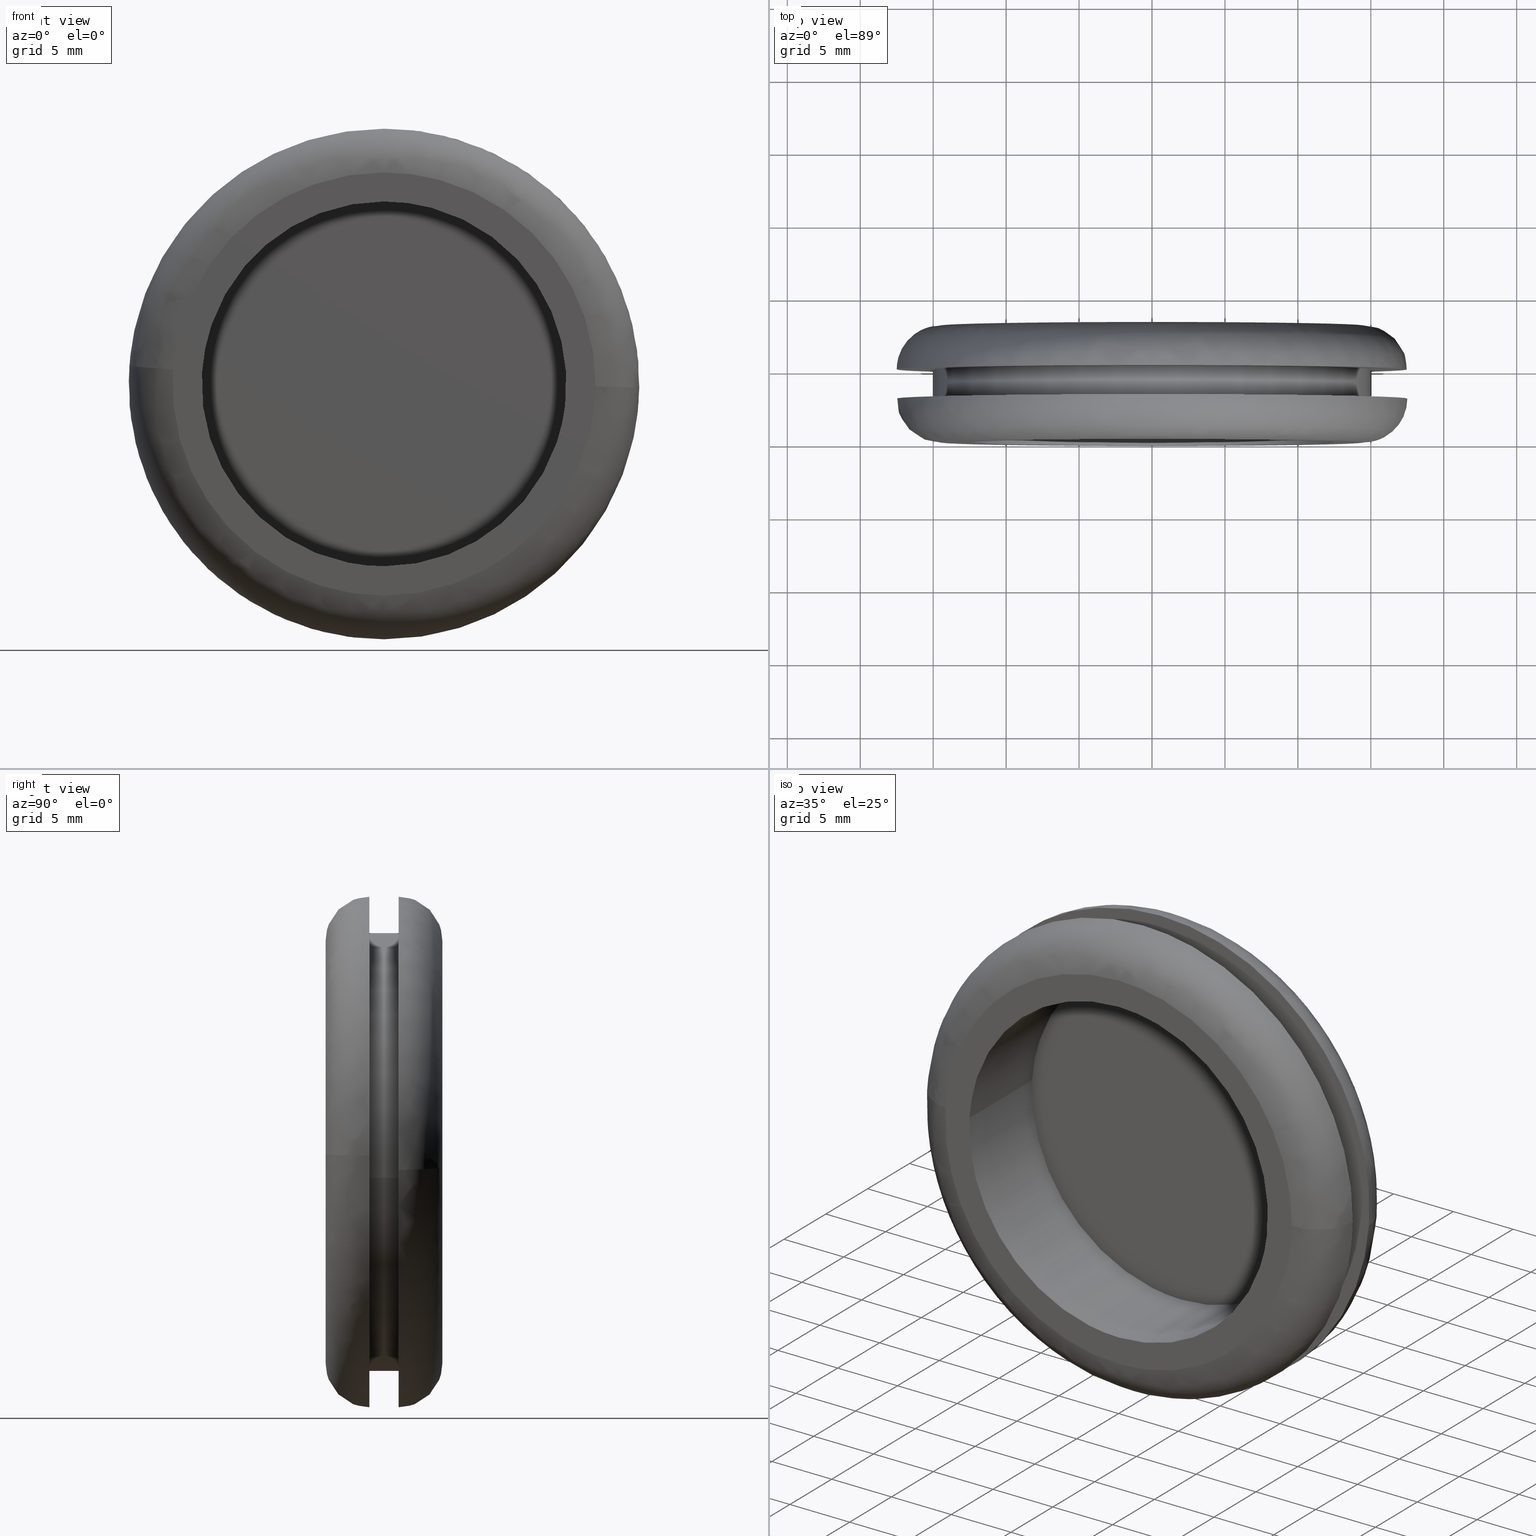
[diagram: canonical four-view strip — front | top / right | iso, engineering-drawing reading convention]
A machine part, canonical four-view strip (front | top / right | iso — engineering-drawing reading convention). The complete STEP part file that produces these views, byte-faithful:
ISO-10303-21;
HEADER;
/****************************************************************
 * Generated by software with PDE/Lib inside                    *
 * PDElib Version 4.4.1-0003, patched  Thursday August 19 11:58 *
 * International Technegroup Inc. (www.iti-oh.com)              *
 ****************************************************************/
FILE_DESCRIPTION((''),'2;1');
FILE_NAME('','2005-12-14T14:17:29',(''),(''),'','CADfix','');
FILE_SCHEMA(('AUTOMOTIVE_DESIGN'));
ENDSEC;
DATA;
#5=APPLICATION_CONTEXT('automotive design');
#6=APPLICATION_PROTOCOL_DEFINITION('Draft International Standard','automotive_design',1998,#5);
#7=PRODUCT_CONTEXT('None',#5,'mechanical');
#8=PRODUCT('grommet','','None',(#7));
#9=PRODUCT_RELATED_PRODUCT_CATEGORY('part','description',(#8));
#10=PRODUCT_DEFINITION_FORMATION('None','None',#8);
#11=PRODUCT_DEFINITION_CONTEXT('part definition',#5,'design');
#12=PRODUCT_DEFINITION('None','None',#10,#11);
#18=(NAMED_UNIT(*)PLANE_ANGLE_UNIT()SI_UNIT($,.RADIAN.));
#19=DIMENSIONAL_EXPONENTS(0.0,0.0,0.0,0.0,0.0,0.0,0.0);
#20=PLANE_ANGLE_MEASURE_WITH_UNIT(PLANE_ANGLE_MEASURE(0.017453292500000),#18);
#24=(CONVERSION_BASED_UNIT('DEGREE',#20)NAMED_UNIT(#19)PLANE_ANGLE_UNIT());
#28=(NAMED_UNIT(*)SI_UNIT($,.STERADIAN.)SOLID_ANGLE_UNIT());
#32=(LENGTH_UNIT()NAMED_UNIT(*)SI_UNIT(.MILLI.,.METRE.));
#34=UNCERTAINTY_MEASURE_WITH_UNIT(LENGTH_MEASURE(0.001000000000000),#32,'DISTANCE_ACCURACY_VALUE','');
#36=(GEOMETRIC_REPRESENTATION_CONTEXT(3)GLOBAL_UNCERTAINTY_ASSIGNED_CONTEXT((#34))GLOBAL_UNIT_ASSIGNED_CONTEXT((#24,#28,#32))REPRESENTATION_CONTEXT('None','None'));
#37=AXIS2_PLACEMENT_3D('',#38,#39,#40);
#38=CARTESIAN_POINT('',(0.0,0.0,0.0));
#39=DIRECTION('',(0.0,0.0,1.0));
#40=DIRECTION('',(1.0,0.0,0.0));
#41=ADVANCED_BREP_SHAPE_REPRESENTATION('',(#37,#923),#36);
#42=PRODUCT_DEFINITION_SHAPE('','',#12);
#43=SHAPE_DEFINITION_REPRESENTATION(#42,#41);
#44=CARTESIAN_POINT('',(14.895142895454988,5.050000000000002,-1.770513519851377));
#45=CARTESIAN_POINT('',(14.945814231729083,5.050000000000001,-1.344220929569665));
#46=CARTESIAN_POINT('',(14.972021976328000,5.050000000000001,-0.915728093022855));
#47=CARTESIAN_POINT('',(15.887750069350853,5.050000000000001,14.056293883305147));
#48=CARTESIAN_POINT('',(0.915728093022855,5.050000000000001,14.972021976328000));
#49=CARTESIAN_POINT('',(-14.056293883305147,5.050000000000001,15.887750069350853));
#50=CARTESIAN_POINT('',(-14.972021976328000,5.050000000000001,0.915728093022854));
#51=CARTESIAN_POINT('',(14.895142895454988,2.948750000000000,-1.770513519851377));
#52=CARTESIAN_POINT('',(14.945814231729083,2.948750000000000,-1.344220929569665));
#53=CARTESIAN_POINT('',(14.972021976328000,2.948750000000000,-0.915728093022855));
#54=CARTESIAN_POINT('',(15.887750069350853,2.948750000000000,14.056293883305147));
#55=CARTESIAN_POINT('',(0.915728093022855,2.948750000000000,14.972021976328000));
#56=CARTESIAN_POINT('',(-14.056293883305147,2.948750000000000,15.887750069350853));
#57=CARTESIAN_POINT('',(-14.972021976328000,2.948750000000000,0.915728093022854));
#65=(BOUNDED_SURFACE()B_SPLINE_SURFACE(2,1,((#44,#51),(#45,#52),(#46,#53),(#47,#54),(#48,#55),(#49,#56),(#50,#57)),.UNSPECIFIED.,.F.,.F.,.U.)B_SPLINE_SURFACE_WITH_KNOTS((3,2,2,3),(2,2),(0.0,0.994112549695429,25.846926292081129,50.699740034466821),(0.0,2.101250000000002),.UNSPECIFIED.)GEOMETRIC_REPRESENTATION_ITEM()RATIONAL_B_SPLINE_SURFACE(((0.977505800795127,0.977505800795127),(0.988284271247462,0.988284271247462),(1.0,1.0),(0.707106781186548,0.707106781186548),(1.0,1.0),(0.707106781186548,0.707106781186548),(1.0,1.0)))REPRESENTATION_ITEM('')SURFACE());
#66=CARTESIAN_POINT('',(14.895143964700610,5.000000000000178,-1.770504524354806));
#67=VERTEX_POINT('',#66);
#68=CARTESIAN_POINT('',(0.0,5.0,15.0));
#69=VERTEX_POINT('',#68);
#70=CARTESIAN_POINT('',(14.895143964700610,5.000000000000178,-1.770504524354806));
#71=CARTESIAN_POINT('',(14.999999999999996,5.0,-0.888357249481153));
#72=CARTESIAN_POINT('',(15.0,5.0,-3.061516E-016));
#73=CARTESIAN_POINT('',(14.999999999999996,4.999999999999999,14.999999999999996));
#74=CARTESIAN_POINT('',(0.0,5.0,15.0));
#82=(BOUNDED_CURVE()B_SPLINE_CURVE(2,(#70,#71,#72,#73,#74),.UNSPECIFIED.,.F.,.U.)B_SPLINE_CURVE_WITH_KNOTS((3,2,3),(0.229562575580339,0.250000000000000,0.500000000000000),.UNSPECIFIED.)CURVE()GEOMETRIC_REPRESENTATION_ITEM()RATIONAL_B_SPLINE_CURVE((0.956026954238961,0.976056067909875,1.0,0.707106781186547,1.0))REPRESENTATION_ITEM(''));
#83=EDGE_CURVE('',#67,#69,#82,.T.);
#84=ORIENTED_EDGE('',*,*,#83,.T.);
#85=CARTESIAN_POINT('',(-14.972022653572500,4.999999999999825,0.915717020038759));
#86=VERTEX_POINT('',#85);
#87=CARTESIAN_POINT('',(0.0,5.0,15.0));
#88=CARTESIAN_POINT('',(-14.110601458978342,5.000000000000002,15.000000000000004));
#89=CARTESIAN_POINT('',(-14.972022653572502,4.999999999999825,0.915717020038759));
#97=(BOUNDED_CURVE()B_SPLINE_CURVE(2,(#87,#88,#89),.UNSPECIFIED.,.F.,.U.)B_SPLINE_CURVE_WITH_KNOTS((3,3),(0.500000000000000,0.739333089853860),.UNSPECIFIED.)CURVE()GEOMETRIC_REPRESENTATION_ITEM()RATIONAL_B_SPLINE_CURVE((1.0,0.719603843776535,0.976072315169929))REPRESENTATION_ITEM(''));
#98=EDGE_CURVE('',#69,#86,#97,.T.);
#99=ORIENTED_EDGE('',*,*,#98,.T.);
#100=CARTESIAN_POINT('',(-14.972022645416461,3.0,0.915717153392057));
#101=VERTEX_POINT('',#100);
#102=CARTESIAN_POINT('',(-14.972022653572500,4.999999999999825,0.915717020038759));
#103=CARTESIAN_POINT('',(-14.972022645416461,3.0,0.915717153392057));
#104=QUASI_UNIFORM_CURVE('',1,(#102,#103),.UNSPECIFIED.,.F.,.U.);
#105=EDGE_CURVE('',#86,#101,#104,.T.);
#106=ORIENTED_EDGE('',*,*,#105,.T.);
#107=CARTESIAN_POINT('',(0.0,3.0,15.0));
#108=VERTEX_POINT('',#107);
#109=CARTESIAN_POINT('',(0.0,3.0,15.0));
#110=CARTESIAN_POINT('',(-14.110601333062750,3.000000000000000,15.000000000000002));
#111=CARTESIAN_POINT('',(-14.972022645416464,3.0,0.915717153392057));
#119=(BOUNDED_CURVE()B_SPLINE_CURVE(2,(#109,#110,#111),.UNSPECIFIED.,.F.,.U.)B_SPLINE_CURVE_WITH_KNOTS((3,3),(0.500000000000000,0.739333088317014),.UNSPECIFIED.)CURVE()GEOMETRIC_REPRESENTATION_ITEM()RATIONAL_B_SPLINE_CURVE((1.0,0.719603845577062,0.976072311876173))REPRESENTATION_ITEM(''));
#120=EDGE_CURVE('',#108,#101,#119,.T.);
#121=ORIENTED_EDGE('',*,*,#120,.F.);
#122=CARTESIAN_POINT('',(14.895143951811241,3.0,-1.770504632792812));
#123=VERTEX_POINT('',#122);
#124=CARTESIAN_POINT('',(14.895143951811241,3.000000000000000,-1.770504632792813));
#125=CARTESIAN_POINT('',(15.0,3.0,-0.888357304273344));
#126=CARTESIAN_POINT('',(15.0,3.0,-3.061516E-016));
#127=CARTESIAN_POINT('',(14.999999999999996,3.000000000000000,14.999999999999996));
#128=CARTESIAN_POINT('',(0.0,3.0,15.0));
#136=(BOUNDED_CURVE()B_SPLINE_CURVE(2,(#124,#125,#126,#127,#128),.UNSPECIFIED.,.F.,.U.)B_SPLINE_CURVE_WITH_KNOTS((3,2,3),(0.229562574349979,0.250000000000000,0.500000000000000),.UNSPECIFIED.)CURVE()GEOMETRIC_REPRESENTATION_ITEM()RATIONAL_B_SPLINE_CURVE((0.956026951827404,0.976056066468419,1.0,0.707106781186547,1.0))REPRESENTATION_ITEM(''));
#137=EDGE_CURVE('',#123,#108,#136,.T.);
#138=ORIENTED_EDGE('',*,*,#137,.F.);
#139=CARTESIAN_POINT('',(14.895143964700610,5.000000000000178,-1.770504524354806));
#140=CARTESIAN_POINT('',(14.895143951811241,3.0,-1.770504632792812));
#141=QUASI_UNIFORM_CURVE('',1,(#139,#140),.UNSPECIFIED.,.F.,.U.);
#142=EDGE_CURVE('',#67,#123,#141,.T.);
#143=ORIENTED_EDGE('',*,*,#142,.F.);
#144=EDGE_LOOP('',(#84,#99,#106,#121,#138,#143));
#145=FACE_OUTER_BOUND('',#144,.T.);
#146=ADVANCED_FACE('',(#145),#65,.T.);
#147=CARTESIAN_POINT('',(-14.972021976328000,5.050000000000001,0.915728093022854));
#148=CARTESIAN_POINT('',(-15.887750069350853,5.050000000000001,-14.056293883305147));
#149=CARTESIAN_POINT('',(-0.915728093022855,5.050000000000001,-14.972021976328000));
#150=CARTESIAN_POINT('',(13.223152362592515,5.050000000000001,-15.836792950987912));
#151=CARTESIAN_POINT('',(14.895142895454988,5.050000000000002,-1.770513519851377));
#152=CARTESIAN_POINT('',(-14.972021976328000,2.948750000000000,0.915728093022854));
#153=CARTESIAN_POINT('',(-15.887750069350853,2.948750000000000,-14.056293883305147));
#154=CARTESIAN_POINT('',(-0.915728093022855,2.948750000000000,-14.972021976328000));
#155=CARTESIAN_POINT('',(13.223152362592515,2.948750000000000,-15.836792950987912));
#156=CARTESIAN_POINT('',(14.895142895454988,2.948750000000000,-1.770513519851377));
#164=(BOUNDED_SURFACE()B_SPLINE_SURFACE(2,1,((#147,#152),(#148,#153),(#149,#154),(#150,#155),(#151,#156)),.UNSPECIFIED.,.F.,.F.,.U.)B_SPLINE_SURFACE_WITH_KNOTS((3,2,3),(2,2),(0.0,24.852813742385699,48.711514935075961),(0.0,2.101250000000002),.UNSPECIFIED.)GEOMETRIC_REPRESENTATION_ITEM()RATIONAL_B_SPLINE_SURFACE(((1.0,1.0),(0.707106781186548,0.707106781186548),(1.0,1.0),(0.718822509939086,0.718822509939086),(0.977505800795127,0.977505800795127)))REPRESENTATION_ITEM('')SURFACE());
#165=CARTESIAN_POINT('',(0.0,5.0,-15.0));
#166=VERTEX_POINT('',#165);
#167=CARTESIAN_POINT('',(0.0,5.0,-15.0));
#168=CARTESIAN_POINT('',(13.322625991727062,5.0,-15.000000000000002));
#169=CARTESIAN_POINT('',(14.895143964700610,5.000000000000178,-1.770504524354806));
#177=(BOUNDED_CURVE()B_SPLINE_CURVE(2,(#167,#168,#169),.UNSPECIFIED.,.F.,.U.)B_SPLINE_CURVE_WITH_KNOTS((3,3),(0.0,0.229562575580339),.UNSPECIFIED.)CURVE()GEOMETRIC_REPRESENTATION_ITEM()RATIONAL_B_SPLINE_CURVE((1.0,0.731050713276673,0.956026954238961))REPRESENTATION_ITEM(''));
#178=EDGE_CURVE('',#166,#67,#177,.T.);
#179=ORIENTED_EDGE('',*,*,#178,.T.);
#180=ORIENTED_EDGE('',*,*,#142,.T.);
#181=CARTESIAN_POINT('',(0.0,3.0,-15.0));
#182=VERTEX_POINT('',#181);
#183=CARTESIAN_POINT('',(0.0,3.0,-15.0));
#184=CARTESIAN_POINT('',(13.322625894054363,3.000000000000000,-14.999999999999998));
#185=CARTESIAN_POINT('',(14.895143951811241,3.000000000000000,-1.770504632792813));
#193=(BOUNDED_CURVE()B_SPLINE_CURVE(2,(#183,#184,#185),.UNSPECIFIED.,.F.,.U.)B_SPLINE_CURVE_WITH_KNOTS((3,3),(0.0,0.229562574349979),.UNSPECIFIED.)CURVE()GEOMETRIC_REPRESENTATION_ITEM()RATIONAL_B_SPLINE_CURVE((1.0,0.731050714718128,0.956026951827404))REPRESENTATION_ITEM(''));
#194=EDGE_CURVE('',#182,#123,#193,.T.);
#195=ORIENTED_EDGE('',*,*,#194,.F.);
#196=CARTESIAN_POINT('',(-14.972022645416464,3.0,0.915717153392057));
#197=CARTESIAN_POINT('',(-14.999999999999996,3.000000000000000,0.458285964326909));
#198=CARTESIAN_POINT('',(-15.0,3.0,-3.061516E-016));
#199=CARTESIAN_POINT('',(-14.999999999999996,3.000000000000000,-14.999999999999996));
#200=CARTESIAN_POINT('',(0.0,3.0,-15.0));
#208=(BOUNDED_CURVE()B_SPLINE_CURVE(2,(#196,#197,#198,#199,#200),.UNSPECIFIED.,.F.,.U.)B_SPLINE_CURVE_WITH_KNOTS((3,2,3),(0.739333088317014,0.750000000000000,1.0),.UNSPECIFIED.)CURVE()GEOMETRIC_REPRESENTATION_ITEM()RATIONAL_B_SPLINE_CURVE((0.976072311876173,0.987502935609486,1.0,0.707106781186547,1.0))REPRESENTATION_ITEM(''));
#209=EDGE_CURVE('',#101,#182,#208,.T.);
#210=ORIENTED_EDGE('',*,*,#209,.F.);
#211=ORIENTED_EDGE('',*,*,#105,.F.);
#212=CARTESIAN_POINT('',(-14.972022653572502,4.999999999999825,0.915717020038759));
#213=CARTESIAN_POINT('',(-14.999999999999996,5.000000000000001,0.458285897463316));
#214=CARTESIAN_POINT('',(-15.0,5.0,-3.061516E-016));
#215=CARTESIAN_POINT('',(-14.999999999999996,4.999999999999999,-14.999999999999996));
#216=CARTESIAN_POINT('',(0.0,5.0,-15.0));
#224=(BOUNDED_CURVE()B_SPLINE_CURVE(2,(#212,#213,#214,#215,#216),.UNSPECIFIED.,.F.,.U.)B_SPLINE_CURVE_WITH_KNOTS((3,2,3),(0.739333089853860,0.750000000000000,1.0),.UNSPECIFIED.)CURVE()GEOMETRIC_REPRESENTATION_ITEM()RATIONAL_B_SPLINE_CURVE((0.976072315169929,0.987502937410012,1.0,0.707106781186547,1.0))REPRESENTATION_ITEM(''));
#225=EDGE_CURVE('',#86,#166,#224,.T.);
#226=ORIENTED_EDGE('',*,*,#225,.T.);
#227=EDGE_LOOP('',(#179,#180,#195,#210,#211,#226));
#228=FACE_OUTER_BOUND('',#227,.T.);
#229=ADVANCED_FACE('',(#228),#164,.T.);
#230=CARTESIAN_POINT('',(12.412619079545834,7.687499999999898,-1.475427933209482));
#231=CARTESIAN_POINT('',(12.454845193107571,7.687499999999897,-1.120184107974722));
#232=CARTESIAN_POINT('',(12.476684980273340,7.687499999999898,-0.763106744185713));
#233=CARTESIAN_POINT('',(13.239791724459048,7.687499999999900,11.713578236087622));
#234=CARTESIAN_POINT('',(0.763106744185712,7.687499999999898,12.476684980273340));
#235=CARTESIAN_POINT('',(-11.713578236087622,7.687499999999900,13.239791724459048));
#236=CARTESIAN_POINT('',(-12.476684980273340,7.687499999999898,0.763106744185712));
#237=CARTESIAN_POINT('',(12.412619079545834,-0.192187500000000,-1.475427933209482));
#238=CARTESIAN_POINT('',(12.454845193107571,-0.192187500000000,-1.120184107974722));
#239=CARTESIAN_POINT('',(12.476684980273340,-0.192187500000000,-0.763106744185713));
#240=CARTESIAN_POINT('',(13.239791724459048,-0.192187500000000,11.713578236087622));
#241=CARTESIAN_POINT('',(0.763106744185712,-0.192187500000000,12.476684980273340));
#242=CARTESIAN_POINT('',(-11.713578236087622,-0.192187500000000,13.239791724459048));
#243=CARTESIAN_POINT('',(-12.476684980273340,-0.192187500000000,0.763106744185712));
#251=(BOUNDED_SURFACE()B_SPLINE_SURFACE(2,1,((#230,#237),(#231,#238),(#232,#239),(#233,#240),(#234,#241),(#235,#242),(#236,#243)),.UNSPECIFIED.,.F.,.F.,.U.)B_SPLINE_SURFACE_WITH_KNOTS((3,2,2,3),(2,2),(0.0,0.828427124746191,21.539105243400940,42.249783362055702),(0.0,7.879687499999899),.UNSPECIFIED.)GEOMETRIC_REPRESENTATION_ITEM()RATIONAL_B_SPLINE_SURFACE(((0.977505800795127,0.977505800795127),(0.988284271247462,0.988284271247462),(1.0,1.0),(0.707106781186548,0.707106781186548),(1.0,1.0),(0.707106781186548,0.707106781186548),(1.0,1.0)))REPRESENTATION_ITEM('')SURFACE());
#252=CARTESIAN_POINT('',(12.412619738504860,7.499999999999872,-1.475422389435752));
#253=VERTEX_POINT('',#252);
#254=CARTESIAN_POINT('',(0.0,7.499999999999900,12.500000000000000));
#255=VERTEX_POINT('',#254);
#256=CARTESIAN_POINT('',(12.412619738504862,7.499999999999872,-1.475422389435752));
#257=CARTESIAN_POINT('',(12.500000000000004,7.499999999999901,-0.740298694458164));
#258=CARTESIAN_POINT('',(12.500000000000000,7.499999999999900,-3.061516E-016));
#259=CARTESIAN_POINT('',(12.499999999999998,7.499999999999901,12.499999999999998));
#260=CARTESIAN_POINT('',(0.0,7.499999999999900,12.500000000000000));
#268=(BOUNDED_CURVE()B_SPLINE_CURVE(2,(#256,#257,#258,#259,#260),.UNSPECIFIED.,.F.,.U.)B_SPLINE_CURVE_WITH_KNOTS((3,2,3),(0.229562548996556,0.250000000000000,0.500000000000000),.UNSPECIFIED.)CURVE()GEOMETRIC_REPRESENTATION_ITEM()RATIONAL_B_SPLINE_CURVE((0.956026902133615,0.976056036765036,1.0,0.707106781186547,1.0))REPRESENTATION_ITEM(''));
#269=EDGE_CURVE('',#253,#255,#268,.T.);
#270=ORIENTED_EDGE('',*,*,#269,.F.);
#271=CARTESIAN_POINT('',(12.412619730572290,-2.383220E-015,-1.475422456172133));
#272=VERTEX_POINT('',#271);
#273=CARTESIAN_POINT('',(12.412619738504860,7.499999999999872,-1.475422389435752));
#274=CARTESIAN_POINT('',(12.412619730572290,-2.383220E-015,-1.475422456172133));
#275=QUASI_UNIFORM_CURVE('',1,(#273,#274),.UNSPECIFIED.,.F.,.U.);
#276=EDGE_CURVE('',#253,#272,#275,.T.);
#277=ORIENTED_EDGE('',*,*,#276,.T.);
#278=CARTESIAN_POINT('',(0.0,-2.296137E-015,12.500000000000000));
#279=VERTEX_POINT('',#278);
#280=CARTESIAN_POINT('',(12.412619730572295,-2.383220E-015,-1.475422456172133));
#281=CARTESIAN_POINT('',(12.500000000000002,-2.296137E-015,-0.740298728179114));
#282=CARTESIAN_POINT('',(12.500000000000000,-2.296137E-015,-3.061516E-016));
#283=CARTESIAN_POINT('',(12.499999999999998,-2.296137E-015,12.499999999999998));
#284=CARTESIAN_POINT('',(0.0,-2.296137E-015,12.500000000000000));
#292=(BOUNDED_CURVE()B_SPLINE_CURVE(2,(#280,#281,#282,#283,#284),.UNSPECIFIED.,.F.,.U.)B_SPLINE_CURVE_WITH_KNOTS((3,2,3),(0.229562548087910,0.250000000000000,0.500000000000000),.UNSPECIFIED.)CURVE()GEOMETRIC_REPRESENTATION_ITEM()RATIONAL_B_SPLINE_CURVE((0.956026900352632,0.976056035700492,1.0,0.707106781186547,1.0))REPRESENTATION_ITEM(''));
#293=EDGE_CURVE('',#272,#279,#292,.T.);
#294=ORIENTED_EDGE('',*,*,#293,.T.);
#295=CARTESIAN_POINT('',(-12.476685747280390,-2.410947E-015,0.763094203524391));
#296=VERTEX_POINT('',#295);
#297=CARTESIAN_POINT('',(0.0,-2.296137E-015,12.500000000000000));
#298=CARTESIAN_POINT('',(-11.758837677533522,-2.296137E-015,12.499999999999998));
#299=CARTESIAN_POINT('',(-12.476685747280390,-2.410947E-015,0.763094203524391));
#307=(BOUNDED_CURVE()B_SPLINE_CURVE(2,(#297,#298,#299),.UNSPECIFIED.,.F.,.U.)B_SPLINE_CURVE_WITH_KNOTS((3,3),(0.500000000000000,0.739333135673544),.UNSPECIFIED.)CURVE()GEOMETRIC_REPRESENTATION_ITEM()RATIONAL_B_SPLINE_CURVE((1.0,0.719603790095436,0.976072413370364))REPRESENTATION_ITEM(''));
#308=EDGE_CURVE('',#279,#296,#307,.T.);
#309=ORIENTED_EDGE('',*,*,#308,.T.);
#310=CARTESIAN_POINT('',(-12.476685756633151,7.499999999999887,0.763094050603009));
#311=VERTEX_POINT('',#310);
#312=CARTESIAN_POINT('',(-12.476685756633151,7.499999999999887,0.763094050603009));
#313=CARTESIAN_POINT('',(-12.476685747280390,-2.410947E-015,0.763094203524391));
#314=QUASI_UNIFORM_CURVE('',1,(#312,#313),.UNSPECIFIED.,.F.,.U.);
#315=EDGE_CURVE('',#311,#296,#314,.T.);
#316=ORIENTED_EDGE('',*,*,#315,.F.);
#317=CARTESIAN_POINT('',(0.0,7.499999999999900,12.500000000000000));
#318=CARTESIAN_POINT('',(-11.758837821925853,7.499999999999901,12.499999999999998));
#319=CARTESIAN_POINT('',(-12.476685756633152,7.499999999999887,0.763094050603009));
#327=(BOUNDED_CURVE()B_SPLINE_CURVE(2,(#317,#318,#319),.UNSPECIFIED.,.F.,.U.)B_SPLINE_CURVE_WITH_KNOTS((3,3),(0.500000000000000,0.739333137788376),.UNSPECIFIED.)CURVE()GEOMETRIC_REPRESENTATION_ITEM()RATIONAL_B_SPLINE_CURVE((1.0,0.719603787617756,0.976072417902860))REPRESENTATION_ITEM(''));
#328=EDGE_CURVE('',#255,#311,#327,.T.);
#329=ORIENTED_EDGE('',*,*,#328,.F.);
#330=EDGE_LOOP('',(#270,#277,#294,#309,#316,#329));
#331=FACE_OUTER_BOUND('',#330,.T.);
#332=ADVANCED_FACE('',(#331),#251,.F.);
#333=CARTESIAN_POINT('',(-12.476684980273340,7.687499999999898,0.763106744185712));
#334=CARTESIAN_POINT('',(-13.239791724459048,7.687499999999900,-11.713578236087622));
#335=CARTESIAN_POINT('',(-0.763106744185712,7.687499999999898,-12.476684980273340));
#336=CARTESIAN_POINT('',(11.019293635493762,7.687499999999899,-13.197327459156595));
#337=CARTESIAN_POINT('',(12.412619079545834,7.687499999999898,-1.475427933209482));
#338=CARTESIAN_POINT('',(-12.476684980273340,-0.192187500000000,0.763106744185712));
#339=CARTESIAN_POINT('',(-13.239791724459048,-0.192187500000000,-11.713578236087622));
#340=CARTESIAN_POINT('',(-0.763106744185712,-0.192187500000000,-12.476684980273340));
#341=CARTESIAN_POINT('',(11.019293635493762,-0.192187500000000,-13.197327459156595));
#342=CARTESIAN_POINT('',(12.412619079545834,-0.192187500000000,-1.475427933209482));
#350=(BOUNDED_SURFACE()B_SPLINE_SURFACE(2,1,((#333,#338),(#334,#339),(#335,#340),(#336,#341),(#337,#342)),.UNSPECIFIED.,.F.,.F.,.U.)B_SPLINE_SURFACE_WITH_KNOTS((3,2,3),(2,2),(0.0,20.710678118654752,40.592929112563311),(0.0,7.879687499999899),.UNSPECIFIED.)GEOMETRIC_REPRESENTATION_ITEM()RATIONAL_B_SPLINE_SURFACE(((1.0,1.0),(0.707106781186548,0.707106781186548),(1.0,1.0),(0.718822509939086,0.718822509939086),(0.977505800795127,0.977505800795127)))REPRESENTATION_ITEM('')SURFACE());
#351=CARTESIAN_POINT('',(0.0,7.499999999999900,-12.500000000000000));
#352=VERTEX_POINT('',#351);
#353=CARTESIAN_POINT('',(0.0,7.499999999999900,-12.500000000000000));
#354=CARTESIAN_POINT('',(11.102186567799974,7.499999999999901,-12.499999999999998));
#355=CARTESIAN_POINT('',(12.412619738504862,7.499999999999872,-1.475422389435752));
#363=(BOUNDED_CURVE()B_SPLINE_CURVE(2,(#353,#354,#355),.UNSPECIFIED.,.F.,.U.)B_SPLINE_CURVE_WITH_KNOTS((3,3),(0.0,0.229562548996556),.UNSPECIFIED.)CURVE()GEOMETRIC_REPRESENTATION_ITEM()RATIONAL_B_SPLINE_CURVE((1.0,0.731050744421512,0.956026902133615))REPRESENTATION_ITEM(''));
#364=EDGE_CURVE('',#352,#253,#363,.T.);
#365=ORIENTED_EDGE('',*,*,#364,.F.);
#366=CARTESIAN_POINT('',(-12.476685756633152,7.499999999999887,0.763094050603009));
#367=CARTESIAN_POINT('',(-12.500000000000000,7.499999999999900,0.381903176645719));
#368=CARTESIAN_POINT('',(-12.500000000000000,7.499999999999900,-3.061516E-016));
#369=CARTESIAN_POINT('',(-12.499999999999998,7.499999999999901,-12.499999999999998));
#370=CARTESIAN_POINT('',(0.0,7.499999999999900,-12.500000000000000));
#378=(BOUNDED_CURVE()B_SPLINE_CURVE(2,(#366,#367,#368,#369,#370),.UNSPECIFIED.,.F.,.U.)B_SPLINE_CURVE_WITH_KNOTS((3,2,3),(0.739333137788376,0.750000000000000,1.0),.UNSPECIFIED.)CURVE()GEOMETRIC_REPRESENTATION_ITEM()RATIONAL_B_SPLINE_CURVE((0.976072417902860,0.987502993568792,1.0,0.707106781186547,1.0))REPRESENTATION_ITEM(''));
#379=EDGE_CURVE('',#311,#352,#378,.T.);
#380=ORIENTED_EDGE('',*,*,#379,.F.);
#381=ORIENTED_EDGE('',*,*,#315,.T.);
#382=CARTESIAN_POINT('',(0.0,-2.296137E-015,-12.500000000000000));
#383=VERTEX_POINT('',#382);
#384=CARTESIAN_POINT('',(-12.476685747280390,-2.410947E-015,0.763094203524391));
#385=CARTESIAN_POINT('',(-12.499999999999998,-2.296137E-015,0.381903253320788));
#386=CARTESIAN_POINT('',(-12.500000000000000,-2.296137E-015,-3.061516E-016));
#387=CARTESIAN_POINT('',(-12.499999999999998,-2.296137E-015,-12.499999999999998));
#388=CARTESIAN_POINT('',(0.0,-2.296137E-015,-12.500000000000000));
#396=(BOUNDED_CURVE()B_SPLINE_CURVE(2,(#384,#385,#386,#387,#388),.UNSPECIFIED.,.F.,.U.)B_SPLINE_CURVE_WITH_KNOTS((3,2,3),(0.739333135673544,0.750000000000000,1.0),.UNSPECIFIED.)CURVE()GEOMETRIC_REPRESENTATION_ITEM()RATIONAL_B_SPLINE_CURVE((0.976072413370364,0.987502991091111,1.0,0.707106781186547,1.0))REPRESENTATION_ITEM(''));
#397=EDGE_CURVE('',#296,#383,#396,.T.);
#398=ORIENTED_EDGE('',*,*,#397,.T.);
#399=CARTESIAN_POINT('',(0.0,-2.296137E-015,-12.500000000000000));
#400=CARTESIAN_POINT('',(11.102186507688929,-2.296137E-015,-12.499999999999998));
#401=CARTESIAN_POINT('',(12.412619730572295,-2.383220E-015,-1.475422456172133));
#409=(BOUNDED_CURVE()B_SPLINE_CURVE(2,(#399,#400,#401),.UNSPECIFIED.,.F.,.U.)B_SPLINE_CURVE_WITH_KNOTS((3,3),(0.0,0.229562548087910),.UNSPECIFIED.)CURVE()GEOMETRIC_REPRESENTATION_ITEM()RATIONAL_B_SPLINE_CURVE((1.0,0.731050745486056,0.956026900352632))REPRESENTATION_ITEM(''));
#410=EDGE_CURVE('',#383,#272,#409,.T.);
#411=ORIENTED_EDGE('',*,*,#410,.T.);
#412=ORIENTED_EDGE('',*,*,#276,.F.);
#413=EDGE_LOOP('',(#365,#380,#381,#398,#411,#412));
#414=FACE_OUTER_BOUND('',#413,.T.);
#415=ADVANCED_FACE('',(#414),#350,.F.);
#416=CARTESIAN_POINT('',(14.256598723312244,7.992738098890419,-0.996584207656498));
#417=CARTESIAN_POINT('',(14.285120507650856,7.992738098890417,-0.588566870973228));
#418=CARTESIAN_POINT('',(14.290260181399203,7.992738098890417,-0.179586158751087));
#419=CARTESIAN_POINT('',(14.469846340150285,7.992738098890417,14.110674022648107));
#420=CARTESIAN_POINT('',(0.179586158751088,7.992738098890417,14.290260181399203));
#421=CARTESIAN_POINT('',(-14.110674022648107,7.992738098890417,14.469846340150285));
#422=CARTESIAN_POINT('',(-14.290260181399203,7.992738098890417,0.179586158751089));
#423=CARTESIAN_POINT('',(17.689444494135703,8.232611385664660,-1.236551674576143));
#424=CARTESIAN_POINT('',(17.724834037653324,8.232611385664654,-0.730287861588150));
#425=CARTESIAN_POINT('',(17.731211293214326,8.232611385664658,-0.222828701908244));
#426=CARTESIAN_POINT('',(17.954039995122567,8.232611385664656,17.508382591306081));
#427=CARTESIAN_POINT('',(0.222828701908246,8.232611385664658,17.731211293214326));
#428=CARTESIAN_POINT('',(-17.508382591306077,8.232611385664656,17.954039995122567));
#429=CARTESIAN_POINT('',(-17.731211293214326,8.232611385664658,0.222828701908247));
#430=CARTESIAN_POINT('',(17.450155136255287,4.791388569362229,-1.219824543529525));
#431=CARTESIAN_POINT('',(17.485065956930757,4.791388569362228,-0.720409082549881));
#432=CARTESIAN_POINT('',(17.491356945826421,4.791388569362228,-0.219814444619689));
#433=CARTESIAN_POINT('',(17.711171390446115,4.791388569362228,17.271542501206731));
#434=CARTESIAN_POINT('',(0.219814444619690,4.791388569362228,17.491356945826421));
#435=CARTESIAN_POINT('',(-17.271542501206731,4.791388569362228,17.711171390446115));
#436=CARTESIAN_POINT('',(-17.491356945826421,4.791388569362228,0.219814444619691));
#444=(BOUNDED_SURFACE()B_SPLINE_SURFACE(2,2,((#416,#423,#430),(#417,#424,#431),(#418,#425,#432),(#419,#426,#433),(#420,#427,#434),(#421,#428,#435),(#422,#429,#436)),.UNSPECIFIED.,.F.,.F.,.U.)B_SPLINE_SURFACE_WITH_KNOTS((3,2,2,3),(3,3),(0.0,1.159315592565597,30.142233046969508,59.125150501373412),(0.0,5.467121882707262),.UNSPECIFIED.)GEOMETRIC_REPRESENTATION_ITEM()RATIONAL_B_SPLINE_SURFACE(((0.895729731882000,0.587800227727101,0.895729731882000),(0.905606489473374,0.594281602805739,0.905606489473374),(0.916342094660671,0.601326575133075,0.916342094660671),(0.647951709021246,0.425202098984279,0.647951709021246),(0.916342094660671,0.601326575133075,0.916342094660671),(0.647951709021246,0.425202098984279,0.647951709021246),(0.916342094660671,0.601326575133075,0.916342094660671)))REPRESENTATION_ITEM('')SURFACE());
#445=CARTESIAN_POINT('',(17.457399292207040,5.000000000042899,-1.220331902577753));
#446=VERTEX_POINT('',#445);
#447=CARTESIAN_POINT('',(0.0,4.999999999999941,17.500000000000000));
#448=VERTEX_POINT('',#447);
#449=CARTESIAN_POINT('',(17.457399292207043,5.000000000042899,-1.220331902577753));
#450=CARTESIAN_POINT('',(17.500000000000004,4.999999999999941,-0.610909527815004));
#451=CARTESIAN_POINT('',(17.500000000000000,4.999999999999941,-3.061516E-016));
#452=CARTESIAN_POINT('',(17.499999999999996,4.999999999999941,17.499999999999996));
#453=CARTESIAN_POINT('',(0.0,4.999999999999941,17.500000000000000));
#461=(BOUNDED_CURVE()B_SPLINE_CURVE(2,(#449,#450,#451,#452,#453),.UNSPECIFIED.,.F.,.U.)B_SPLINE_CURVE_WITH_KNOTS((3,2,3),(0.237833686534986,0.250000000000000,0.500000000000000),.UNSPECIFIED.)CURVE()GEOMETRIC_REPRESENTATION_ITEM()RATIONAL_B_SPLINE_CURVE((0.972879876386753,0.985746277152555,1.0,0.707106781186548,1.0))REPRESENTATION_ITEM(''));
#462=EDGE_CURVE('',#446,#448,#461,.T.);
#463=ORIENTED_EDGE('',*,*,#462,.F.);
#464=CARTESIAN_POINT('',(14.464702271190101,7.999999999999977,-1.011132147919218));
#465=VERTEX_POINT('',#464);
#466=CARTESIAN_POINT('',(14.464702271190099,7.999999999999977,-1.011132147919218));
#467=CARTESIAN_POINT('',(17.457399159166261,7.999999865704194,-1.220331893270183));
#468=CARTESIAN_POINT('',(17.457399292207047,5.000000000042899,-1.220331902577752));
#476=(BOUNDED_CURVE()B_SPLINE_CURVE(2,(#466,#467,#468),.UNSPECIFIED.,.F.,.U.)B_SPLINE_CURVE_WITH_KNOTS((3,3),(-1.734750745143070,-0.265249254534877),.UNSPECIFIED.)CURVE()GEOMETRIC_REPRESENTATION_ITEM()RATIONAL_B_SPLINE_CURVE((0.869031695761348,0.614498232591279,0.869031695872914))REPRESENTATION_ITEM(''));
#477=EDGE_CURVE('',#465,#446,#476,.T.);
#478=ORIENTED_EDGE('',*,*,#477,.F.);
#479=CARTESIAN_POINT('',(0.0,8.0,14.500000000000000));
#480=VERTEX_POINT('',#479);
#481=CARTESIAN_POINT('',(14.464702271190097,7.999999999999977,-1.011132147919218));
#482=CARTESIAN_POINT('',(14.500000000000004,8.0,-0.506182180223362));
#483=CARTESIAN_POINT('',(14.500000000000000,8.0,-3.061516E-016));
#484=CARTESIAN_POINT('',(14.500000000000000,8.0,14.500000000000000));
#485=CARTESIAN_POINT('',(0.0,8.0,14.500000000000000));
#493=(BOUNDED_CURVE()B_SPLINE_CURVE(2,(#481,#482,#483,#484,#485),.UNSPECIFIED.,.F.,.U.)B_SPLINE_CURVE_WITH_KNOTS((3,2,3),(0.237833686534186,0.250000000000000,0.500000000000000),.UNSPECIFIED.)CURVE()GEOMETRIC_REPRESENTATION_ITEM()RATIONAL_B_SPLINE_CURVE((0.972879876385060,0.985746277151617,1.0,0.707106781186548,1.0))REPRESENTATION_ITEM(''));
#494=EDGE_CURVE('',#465,#480,#493,.T.);
#495=ORIENTED_EDGE('',*,*,#494,.T.);
#496=CARTESIAN_POINT('',(-14.498855141469869,7.999999999999977,0.182207578360299));
#497=VERTEX_POINT('',#496);
#498=CARTESIAN_POINT('',(0.0,8.0,14.500000000000000));
#499=CARTESIAN_POINT('',(-14.318922983566821,8.0,14.500000000000002));
#500=CARTESIAN_POINT('',(-14.498855141469868,7.999999999999977,0.182207578360299));
#508=(BOUNDED_CURVE()B_SPLINE_CURVE(2,(#498,#499,#500),.UNSPECIFIED.,.F.,.U.)B_SPLINE_CURVE_WITH_KNOTS((3,3),(0.500000000000000,0.747784295920632),.UNSPECIFIED.)CURVE()GEOMETRIC_REPRESENTATION_ITEM()RATIONAL_B_SPLINE_CURVE((1.0,0.709702639985524,0.994854295641490))REPRESENTATION_ITEM(''));
#509=EDGE_CURVE('',#480,#497,#508,.T.);
#510=ORIENTED_EDGE('',*,*,#509,.T.);
#511=CARTESIAN_POINT('',(-17.498618273566660,5.000000000042894,0.219905697968189));
#512=VERTEX_POINT('',#511);
#513=CARTESIAN_POINT('',(-14.498855141469866,7.999999999999977,0.182207578360299));
#514=CARTESIAN_POINT('',(-17.498618140211370,7.999999865689616,0.219905696282777));
#515=CARTESIAN_POINT('',(-17.498618273566660,5.000000000042894,0.219905697968189));
#523=(BOUNDED_CURVE()B_SPLINE_CURVE(2,(#513,#514,#515),.UNSPECIFIED.,.F.,.U.)B_SPLINE_CURVE_WITH_KNOTS((3,3),(-1.734750745138020,-0.265249254534872),.UNSPECIFIED.)CURVE()GEOMETRIC_REPRESENTATION_ITEM()RATIONAL_B_SPLINE_CURVE((0.889029707089929,0.628638962645854,0.889029707205854))REPRESENTATION_ITEM(''));
#524=EDGE_CURVE('',#497,#512,#523,.T.);
#525=ORIENTED_EDGE('',*,*,#524,.T.);
#526=CARTESIAN_POINT('',(0.0,4.999999999999941,17.500000000000000));
#527=CARTESIAN_POINT('',(-17.281458773359113,4.999999999999941,17.499999999999996));
#528=CARTESIAN_POINT('',(-17.498618273566660,5.000000000042894,0.219905697968189));
#536=(BOUNDED_CURVE()B_SPLINE_CURVE(2,(#526,#527,#528),.UNSPECIFIED.,.F.,.U.)B_SPLINE_CURVE_WITH_KNOTS((3,3),(0.500000000000000,0.747784295921536),.UNSPECIFIED.)CURVE()GEOMETRIC_REPRESENTATION_ITEM()RATIONAL_B_SPLINE_CURVE((1.0,0.709702639984465,0.994854295643570))REPRESENTATION_ITEM(''));
#537=EDGE_CURVE('',#448,#512,#536,.T.);
#538=ORIENTED_EDGE('',*,*,#537,.F.);
#539=EDGE_LOOP('',(#463,#478,#495,#510,#525,#538));
#540=FACE_OUTER_BOUND('',#539,.T.);
#541=ADVANCED_FACE('',(#540),#444,.T.);
#542=CARTESIAN_POINT('',(-14.290259831682206,7.992738074511160,0.179586154356181));
#543=CARTESIAN_POINT('',(-14.469845986038386,7.992738074511161,-14.110673677326028));
#544=CARTESIAN_POINT('',(-0.179586154356182,7.992738074511160,-14.290259831682206));
#545=CARTESIAN_POINT('',(13.315469874768803,7.992738074511160,-14.459852634307021));
#546=CARTESIAN_POINT('',(14.256598319418117,7.992738074511160,-0.996584970080899));
#547=CARTESIAN_POINT('',(-17.731211340835856,8.232611793094977,0.222828702506704));
#548=CARTESIAN_POINT('',(-17.954040043342566,8.232611793094980,-17.508382638329156));
#549=CARTESIAN_POINT('',(-0.222828702506705,8.232611793094977,-17.731211340835856));
#550=CARTESIAN_POINT('',(16.521701720819301,8.232611793094979,-17.941640392556696));
#551=CARTESIAN_POINT('',(17.689444473400499,8.232611793094975,-1.236552654167161));
#552=CARTESIAN_POINT('',(-17.491356944666702,4.791388552723586,0.219814444605112));
#553=CARTESIAN_POINT('',(-17.711171389271804,4.791388552723585,-17.271542500061592));
#554=CARTESIAN_POINT('',(-0.219814444605113,4.791388552723586,-17.491356944666702));
#555=CARTESIAN_POINT('',(16.298208654623220,4.791388552723586,-17.698939471569414));
#556=CARTESIAN_POINT('',(17.450155067776876,4.791388552723586,-1.219825506512361));
#564=(BOUNDED_SURFACE()B_SPLINE_SURFACE(2,2,((#542,#547,#552),(#543,#548,#553),(#544,#549,#554),(#545,#550,#555),(#546,#551,#556)),.UNSPECIFIED.,.F.,.F.,.U.)B_SPLINE_SURFACE_WITH_KNOTS((3,2,3),(3,3),(0.0,28.982917452482269,56.806518206865263),(0.0,5.467122326212567),.UNSPECIFIED.)GEOMETRIC_REPRESENTATION_ITEM()RATIONAL_B_SPLINE_SURFACE(((0.916342143449170,0.601326549578302,0.916342096981720),(0.647951743519924,0.425202080914326,0.647951710662475),(0.916342143449170,0.601326549578302,0.916342096981720),(0.658687359517094,0.432247059660885,0.658687326115245),(0.895729760734604,0.587800190384909,0.895729715312401)))REPRESENTATION_ITEM('')SURFACE());
#565=CARTESIAN_POINT('',(0.0,4.999999999999941,-17.500000000000000));
#566=VERTEX_POINT('',#565);
#567=CARTESIAN_POINT('',(0.0,4.999999999999941,-17.500000000000000));
#568=CARTESIAN_POINT('',(16.319394827151751,4.999999999999941,-17.499999999999996));
#569=CARTESIAN_POINT('',(17.457399292207036,5.000000000042899,-1.220331902577752));
#577=(BOUNDED_CURVE()B_SPLINE_CURVE(2,(#567,#568,#569),.UNSPECIFIED.,.F.,.U.)B_SPLINE_CURVE_WITH_KNOTS((3,3),(0.0,0.237833686534986),.UNSPECIFIED.)CURVE()GEOMETRIC_REPRESENTATION_ITEM()RATIONAL_B_SPLINE_CURVE((1.0,0.721360504033993,0.972879876386753))REPRESENTATION_ITEM(''));
#578=EDGE_CURVE('',#566,#446,#577,.T.);
#579=ORIENTED_EDGE('',*,*,#578,.F.);
#580=CARTESIAN_POINT('',(-17.498618273566660,5.000000000042895,0.219905697968189));
#581=CARTESIAN_POINT('',(-17.500000000000004,4.999999999999940,0.109957189867597));
#582=CARTESIAN_POINT('',(-17.500000000000000,4.999999999999941,-3.061516E-016));
#583=CARTESIAN_POINT('',(-17.499999999999996,4.999999999999941,-17.499999999999996));
#584=CARTESIAN_POINT('',(0.0,4.999999999999941,-17.500000000000000));
#592=(BOUNDED_CURVE()B_SPLINE_CURVE(2,(#580,#581,#582,#583,#584),.UNSPECIFIED.,.F.,.U.)B_SPLINE_CURVE_WITH_KNOTS((3,2,3),(0.747784295921537,0.750000000000000,1.0),.UNSPECIFIED.)CURVE()GEOMETRIC_REPRESENTATION_ITEM()RATIONAL_B_SPLINE_CURVE((0.994854295643572,0.997404141202083,1.0,0.707106781186548,1.0))REPRESENTATION_ITEM(''));
#593=EDGE_CURVE('',#512,#566,#592,.T.);
#594=ORIENTED_EDGE('',*,*,#593,.F.);
#595=ORIENTED_EDGE('',*,*,#524,.F.);
#596=CARTESIAN_POINT('',(0.0,8.0,-14.500000000000000));
#597=VERTEX_POINT('',#596);
#598=CARTESIAN_POINT('',(-14.498855141469871,7.999999999999977,0.182207578360299));
#599=CARTESIAN_POINT('',(-14.499999999999998,8.0,0.091107385927624));
#600=CARTESIAN_POINT('',(-14.500000000000000,8.0,-3.061516E-016));
#601=CARTESIAN_POINT('',(-14.500000000000000,8.0,-14.500000000000000));
#602=CARTESIAN_POINT('',(0.0,8.0,-14.500000000000000));
#610=(BOUNDED_CURVE()B_SPLINE_CURVE(2,(#598,#599,#600,#601,#602),.UNSPECIFIED.,.F.,.U.)B_SPLINE_CURVE_WITH_KNOTS((3,2,3),(0.747784295920631,0.750000000000000,1.0),.UNSPECIFIED.)CURVE()GEOMETRIC_REPRESENTATION_ITEM()RATIONAL_B_SPLINE_CURVE((0.994854295641488,0.997404141201022,1.0,0.707106781186548,1.0))REPRESENTATION_ITEM(''));
#611=EDGE_CURVE('',#497,#597,#610,.T.);
#612=ORIENTED_EDGE('',*,*,#611,.T.);
#613=CARTESIAN_POINT('',(0.0,8.0,-14.500000000000000));
#614=CARTESIAN_POINT('',(13.521784285291204,8.000000000000002,-14.500000000000007));
#615=CARTESIAN_POINT('',(14.464702271190101,7.999999999999977,-1.011132147919218));
#623=(BOUNDED_CURVE()B_SPLINE_CURVE(2,(#613,#614,#615),.UNSPECIFIED.,.F.,.U.)B_SPLINE_CURVE_WITH_KNOTS((3,3),(0.0,0.237833686534186),.UNSPECIFIED.)CURVE()GEOMETRIC_REPRESENTATION_ITEM()RATIONAL_B_SPLINE_CURVE((1.0,0.721360504034931,0.972879876385060))REPRESENTATION_ITEM(''));
#624=EDGE_CURVE('',#597,#465,#623,.T.);
#625=ORIENTED_EDGE('',*,*,#624,.T.);
#626=ORIENTED_EDGE('',*,*,#477,.T.);
#627=EDGE_LOOP('',(#579,#594,#595,#612,#625,#626));
#628=FACE_OUTER_BOUND('',#627,.T.);
#629=ADVANCED_FACE('',(#628),#564,.T.);
#630=CARTESIAN_POINT('',(-17.450155134519811,3.208611455595631,1.219824543408222));
#631=CARTESIAN_POINT('',(-17.485065955191811,3.208611455595631,0.720409082478247));
#632=CARTESIAN_POINT('',(-17.491356944086842,3.208611455595630,0.219814444597841));
#633=CARTESIAN_POINT('',(-17.711171388684683,3.208611455595631,-17.271542499489001));
#634=CARTESIAN_POINT('',(-0.219814444597842,3.208611455595630,-17.491356944086842));
#635=CARTESIAN_POINT('',(17.271542499489001,3.208611455595631,-17.711171388684683));
#636=CARTESIAN_POINT('',(17.491356944086842,3.208611455595630,-0.219814444597843));
#637=CARTESIAN_POINT('',(-17.689444565399761,-0.232611996810258,1.236551679557753));
#638=CARTESIAN_POINT('',(-17.724834109059938,-0.232611996810258,0.730287864530216));
#639=CARTESIAN_POINT('',(-17.731211364646633,-0.232611996810258,0.222828702805950));
#640=CARTESIAN_POINT('',(-17.954040067452588,-0.232611996810258,-17.508382661840681));
#641=CARTESIAN_POINT('',(-0.222828702805951,-0.232611996810258,-17.731211364646633));
#642=CARTESIAN_POINT('',(17.508382661840681,-0.232611996810258,-17.954040067452588));
#643=CARTESIAN_POINT('',(17.731211364646633,-0.232611996810258,-0.222828702805952));
#644=CARTESIAN_POINT('',(-14.256598199972428,0.007261937678378,0.996584171073296));
#645=CARTESIAN_POINT('',(-14.285119983264057,0.007261937678378,0.588566849367772));
#646=CARTESIAN_POINT('',(-14.290259656823723,0.007261937678378,0.179586152158741));
#647=CARTESIAN_POINT('',(-14.469845808982466,0.007261937678378,-14.110673504664984));
#648=CARTESIAN_POINT('',(-0.179586152158742,0.007261937678378,-14.290259656823723));
#649=CARTESIAN_POINT('',(14.110673504664984,0.007261937678378,-14.469845808982466));
#650=CARTESIAN_POINT('',(14.290259656823723,0.007261937678378,-0.179586152158743));
#658=(BOUNDED_SURFACE()B_SPLINE_SURFACE(2,2,((#630,#637,#644),(#631,#638,#645),(#632,#639,#646),(#633,#640,#647),(#634,#641,#648),(#635,#642,#649),(#636,#643,#650)),.UNSPECIFIED.,.F.,.F.,.U.)B_SPLINE_SURFACE_WITH_KNOTS((3,2,2,3),(3,3),(0.0,1.159315592450299,30.142233043971750,59.125150495493209),(0.0,5.467122547965218),.UNSPECIFIED.)GEOMETRIC_REPRESENTATION_ITEM()RATIONAL_B_SPLINE_SURFACE(((0.895729735285258,0.587800190257192,0.895729803418566),(0.905606492914159,0.594281564922668,0.905606561798738),(0.916342098142244,0.601326536800916,0.916342167843423),(0.647951711483090,0.425202071879350,0.647951760769266),(0.916342098142244,0.601326536800916,0.916342167843423),(0.647951711483090,0.425202071879350,0.647951760769266),(0.916342098142244,0.601326536800916,0.916342167843423)))REPRESENTATION_ITEM('')SURFACE());
#659=CARTESIAN_POINT('',(-14.464702138106420,-6.384905E-014,1.011132138611312));
#660=VERTEX_POINT('',#659);
#661=CARTESIAN_POINT('',(0.0,-6.394885E-014,-14.499999866719939));
#662=VERTEX_POINT('',#661);
#663=CARTESIAN_POINT('',(-14.464702138106420,-6.384905E-014,1.011132138611312));
#664=CARTESIAN_POINT('',(-14.499999866719945,-6.394885E-014,0.506182175565772));
#665=CARTESIAN_POINT('',(-14.499999866719939,-6.394885E-014,-3.061516E-016));
#666=CARTESIAN_POINT('',(-14.499999866719946,-6.394885E-014,-14.499999866719946));
#667=CARTESIAN_POINT('',(0.0,-6.394885E-014,-14.499999866719939));
#675=(BOUNDED_CURVE()B_SPLINE_CURVE(2,(#663,#664,#665,#666,#667),.UNSPECIFIED.,.F.,.U.)B_SPLINE_CURVE_WITH_KNOTS((3,2,3),(0.737833686534302,0.750000000000000,1.0),.UNSPECIFIED.)CURVE()GEOMETRIC_REPRESENTATION_ITEM()RATIONAL_B_SPLINE_CURVE((0.972879876385306,0.985746277151753,1.0,0.707106781186548,1.0))REPRESENTATION_ITEM(''));
#676=EDGE_CURVE('',#660,#662,#675,.T.);
#677=ORIENTED_EDGE('',*,*,#676,.F.);
#678=CARTESIAN_POINT('',(-17.457399292207040,2.999999999907546,1.220331902577759));
#679=VERTEX_POINT('',#678);
#680=CARTESIAN_POINT('',(-17.457399292207040,2.999999999907547,1.220331902577759));
#681=CARTESIAN_POINT('',(-17.457399159067599,7.582020E-010,1.220331893263300));
#682=CARTESIAN_POINT('',(-14.464702138106416,-6.384905E-014,1.011132138611312));
#690=(BOUNDED_CURVE()B_SPLINE_CURVE(2,(#680,#681,#682),.UNSPECIFIED.,.F.,.U.)B_SPLINE_CURVE_WITH_KNOTS((3,3),(-1.734750745430869,-0.265249208604235),.UNSPECIFIED.)CURVE()GEOMETRIC_REPRESENTATION_ITEM()RATIONAL_B_SPLINE_CURVE((0.869031695861048,0.614498224585748,0.869031711784277))REPRESENTATION_ITEM(''));
#691=EDGE_CURVE('',#679,#660,#690,.T.);
#692=ORIENTED_EDGE('',*,*,#691,.F.);
#693=CARTESIAN_POINT('',(0.0,2.999999999999955,-17.500000000000000));
#694=VERTEX_POINT('',#693);
#695=CARTESIAN_POINT('',(-17.457399292207032,2.999999999907546,1.220331902577760));
#696=CARTESIAN_POINT('',(-17.500000000000004,2.999999999999955,0.610909527815002));
#697=CARTESIAN_POINT('',(-17.500000000000000,2.999999999999955,-3.061516E-016));
#698=CARTESIAN_POINT('',(-17.499999999999996,2.999999999999955,-17.499999999999996));
#699=CARTESIAN_POINT('',(0.0,2.999999999999955,-17.500000000000000));
#707=(BOUNDED_CURVE()B_SPLINE_CURVE(2,(#695,#696,#697,#698,#699),.UNSPECIFIED.,.F.,.U.)B_SPLINE_CURVE_WITH_KNOTS((3,2,3),(0.737833686534986,0.750000000000000,1.0),.UNSPECIFIED.)CURVE()GEOMETRIC_REPRESENTATION_ITEM()RATIONAL_B_SPLINE_CURVE((0.972879876386753,0.985746277152555,1.0,0.707106781186548,1.0))REPRESENTATION_ITEM(''));
#708=EDGE_CURVE('',#679,#694,#707,.T.);
#709=ORIENTED_EDGE('',*,*,#708,.T.);
#710=CARTESIAN_POINT('',(17.498618273566660,2.999999999907550,-0.219905697968200));
#711=VERTEX_POINT('',#710);
#712=CARTESIAN_POINT('',(0.0,2.999999999999955,-17.500000000000000));
#713=CARTESIAN_POINT('',(17.281458773359173,2.999999999999954,-17.500000000000004));
#714=CARTESIAN_POINT('',(17.498618273566652,2.999999999907549,-0.219905697968200));
#722=(BOUNDED_CURVE()B_SPLINE_CURVE(2,(#712,#713,#714),.UNSPECIFIED.,.F.,.U.)B_SPLINE_CURVE_WITH_KNOTS((3,3),(0.0,0.247784295921537),.UNSPECIFIED.)CURVE()GEOMETRIC_REPRESENTATION_ITEM()RATIONAL_B_SPLINE_CURVE((1.0,0.709702639984464,0.994854295643571))REPRESENTATION_ITEM(''));
#723=EDGE_CURVE('',#694,#711,#722,.T.);
#724=ORIENTED_EDGE('',*,*,#723,.T.);
#725=CARTESIAN_POINT('',(14.498855008070800,-6.388134E-014,-0.182207576678487));
#726=VERTEX_POINT('',#725);
#727=CARTESIAN_POINT('',(17.498618273566652,2.999999999907550,-0.219905697968200));
#728=CARTESIAN_POINT('',(17.498618140112473,7.710094E-010,-0.219905696281547));
#729=CARTESIAN_POINT('',(14.498855008070798,-6.388134E-014,-0.182207576678487));
#737=(BOUNDED_CURVE()B_SPLINE_CURVE(2,(#727,#728,#729),.UNSPECIFIED.,.F.,.U.)B_SPLINE_CURVE_WITH_KNOTS((3,3),(-1.734750745430872,-0.265249208608671),.UNSPECIFIED.)CURVE()GEOMETRIC_REPRESENTATION_ITEM()RATIONAL_B_SPLINE_CURVE((0.889029707193714,0.628638954455992,0.889029723481793))REPRESENTATION_ITEM(''));
#738=EDGE_CURVE('',#711,#726,#737,.T.);
#739=ORIENTED_EDGE('',*,*,#738,.T.);
#740=CARTESIAN_POINT('',(0.0,-6.394885E-014,-14.499999866719939));
#741=CARTESIAN_POINT('',(14.318922851961739,-6.394885E-014,-14.499999866719934));
#742=CARTESIAN_POINT('',(14.498855008070807,-6.388134E-014,-0.182207576678487));
#750=(BOUNDED_CURVE()B_SPLINE_CURVE(2,(#740,#741,#742),.UNSPECIFIED.,.F.,.U.)B_SPLINE_CURVE_WITH_KNOTS((3,3),(0.0,0.247784295920762),.UNSPECIFIED.)CURVE()GEOMETRIC_REPRESENTATION_ITEM()RATIONAL_B_SPLINE_CURVE((1.0,0.709702639985372,0.994854295641789))REPRESENTATION_ITEM(''));
#751=EDGE_CURVE('',#662,#726,#750,.T.);
#752=ORIENTED_EDGE('',*,*,#751,.F.);
#753=EDGE_LOOP('',(#677,#692,#709,#724,#739,#752));
#754=FACE_OUTER_BOUND('',#753,.T.);
#755=ADVANCED_FACE('',(#754),#658,.T.);
#756=CARTESIAN_POINT('',(17.491356944086842,3.208611455595630,-0.219814444597839));
#757=CARTESIAN_POINT('',(17.711171388684683,3.208611455595631,17.271542499489001));
#758=CARTESIAN_POINT('',(0.219814444597840,3.208611455595630,17.491356944086842));
#759=CARTESIAN_POINT('',(-16.298208654082892,3.208611455595630,17.698939470982694));
#760=CARTESIAN_POINT('',(-17.450155067198377,3.208611455595631,1.219825506471936));
#761=CARTESIAN_POINT('',(17.731211364646633,-0.232611996810258,-0.222828702805948));
#762=CARTESIAN_POINT('',(17.954040067452585,-0.232611996810258,17.508382661840685));
#763=CARTESIAN_POINT('',(0.222828702805949,-0.232611996810258,17.731211364646633));
#764=CARTESIAN_POINT('',(-16.521701743005838,-0.232611996810258,17.941640416650060));
#765=CARTESIAN_POINT('',(-17.689444497155190,-0.232611996810258,1.236552655827709));
#766=CARTESIAN_POINT('',(14.290259656823723,0.007261937678378,-0.179586152158740));
#767=CARTESIAN_POINT('',(14.469845808982466,0.007261937678378,14.110673504664989));
#768=CARTESIAN_POINT('',(0.179586152158741,0.007261937678378,14.290259656823723));
#769=CARTESIAN_POINT('',(-13.315469711838032,0.007261937678378,14.459852457373374));
#770=CARTESIAN_POINT('',(-14.256598144971514,0.007261937678378,0.996584957886497));
#778=(BOUNDED_SURFACE()B_SPLINE_SURFACE(2,2,((#756,#761,#766),(#757,#762,#767),(#758,#763,#768),(#759,#764,#769),(#760,#765,#770)),.UNSPECIFIED.,.F.,.F.,.U.)B_SPLINE_SURFACE_WITH_KNOTS((3,2,3),(3,3),(0.0,28.982917451521448,56.806518204982041),(0.0,5.467122547965208),.UNSPECIFIED.)GEOMETRIC_REPRESENTATION_ITEM()RATIONAL_B_SPLINE_SURFACE(((0.916342098142244,0.601326536800916,0.916342167843423),(0.647951711483090,0.425202071879350,0.647951760769266),(0.916342098142244,0.601326536800916,0.916342167843423),(0.658687326949456,0.432247050476212,0.658687377052232),(0.895729716446821,0.587800177894940,0.895729784580128)))REPRESENTATION_ITEM('')SURFACE());
#779=CARTESIAN_POINT('',(0.0,-6.394885E-014,14.499999866719939));
#780=VERTEX_POINT('',#779);
#781=CARTESIAN_POINT('',(0.0,-6.394885E-014,14.499999866719939));
#782=CARTESIAN_POINT('',(-13.521784161011732,-6.394885E-014,14.499999866719934));
#783=CARTESIAN_POINT('',(-14.464702138106416,-6.384905E-014,1.011132138611312));
#791=(BOUNDED_CURVE()B_SPLINE_CURVE(2,(#781,#782,#783),.UNSPECIFIED.,.F.,.U.)B_SPLINE_CURVE_WITH_KNOTS((3,3),(0.500000000000000,0.737833686534301),.UNSPECIFIED.)CURVE()GEOMETRIC_REPRESENTATION_ITEM()RATIONAL_B_SPLINE_CURVE((1.0,0.721360504034796,0.972879876385304))REPRESENTATION_ITEM(''));
#792=EDGE_CURVE('',#780,#660,#791,.T.);
#793=ORIENTED_EDGE('',*,*,#792,.F.);
#794=CARTESIAN_POINT('',(14.498855008070800,-6.388134E-014,-0.182207576678487));
#795=CARTESIAN_POINT('',(14.499999866719941,-6.394885E-014,-0.091107385084804));
#796=CARTESIAN_POINT('',(14.499999866719939,-6.394885E-014,-3.061516E-016));
#797=CARTESIAN_POINT('',(14.499999866719946,-6.394885E-014,14.499999866719946));
#798=CARTESIAN_POINT('',(0.0,-6.394885E-014,14.499999866719939));
#806=(BOUNDED_CURVE()B_SPLINE_CURVE(2,(#794,#795,#796,#797,#798),.UNSPECIFIED.,.F.,.U.)B_SPLINE_CURVE_WITH_KNOTS((3,2,3),(0.247784295920762,0.250000000000000,0.500000000000000),.UNSPECIFIED.)CURVE()GEOMETRIC_REPRESENTATION_ITEM()RATIONAL_B_SPLINE_CURVE((0.994854295641788,0.997404141201175,1.0,0.707106781186548,1.0))REPRESENTATION_ITEM(''));
#807=EDGE_CURVE('',#726,#780,#806,.T.);
#808=ORIENTED_EDGE('',*,*,#807,.F.);
#809=ORIENTED_EDGE('',*,*,#738,.F.);
#810=CARTESIAN_POINT('',(0.0,2.999999999999955,17.500000000000000));
#811=VERTEX_POINT('',#810);
#812=CARTESIAN_POINT('',(17.498618273566652,2.999999999907550,-0.219905697968200));
#813=CARTESIAN_POINT('',(17.499999999999996,2.999999999999956,-0.109957189867600));
#814=CARTESIAN_POINT('',(17.500000000000000,2.999999999999955,-3.061516E-016));
#815=CARTESIAN_POINT('',(17.499999999999996,2.999999999999955,17.499999999999996));
#816=CARTESIAN_POINT('',(0.0,2.999999999999955,17.500000000000000));
#824=(BOUNDED_CURVE()B_SPLINE_CURVE(2,(#812,#813,#814,#815,#816),.UNSPECIFIED.,.F.,.U.)B_SPLINE_CURVE_WITH_KNOTS((3,2,3),(0.247784295921537,0.250000000000000,0.500000000000000),.UNSPECIFIED.)CURVE()GEOMETRIC_REPRESENTATION_ITEM()RATIONAL_B_SPLINE_CURVE((0.994854295643572,0.997404141202083,1.0,0.707106781186548,1.0))REPRESENTATION_ITEM(''));
#825=EDGE_CURVE('',#711,#811,#824,.T.);
#826=ORIENTED_EDGE('',*,*,#825,.T.);
#827=CARTESIAN_POINT('',(0.0,2.999999999999955,17.500000000000000));
#828=CARTESIAN_POINT('',(-16.319394827151843,2.999999999999956,17.500000000000007));
#829=CARTESIAN_POINT('',(-17.457399292207036,2.999999999907547,1.220331902577759));
#837=(BOUNDED_CURVE()B_SPLINE_CURVE(2,(#827,#828,#829),.UNSPECIFIED.,.F.,.U.)B_SPLINE_CURVE_WITH_KNOTS((3,3),(0.500000000000000,0.737833686534987),.UNSPECIFIED.)CURVE()GEOMETRIC_REPRESENTATION_ITEM()RATIONAL_B_SPLINE_CURVE((1.0,0.721360504033992,0.972879876386755))REPRESENTATION_ITEM(''));
#838=EDGE_CURVE('',#811,#679,#837,.T.);
#839=ORIENTED_EDGE('',*,*,#838,.T.);
#840=ORIENTED_EDGE('',*,*,#691,.T.);
#841=EDGE_LOOP('',(#793,#808,#809,#826,#839,#840));
#842=FACE_OUTER_BOUND('',#841,.T.);
#843=ADVANCED_FACE('',(#842),#778,.T.);
#844=CARTESIAN_POINT('',(-19.246700443238879,5.0,-19.248249932163208));
#845=CARTESIAN_POINT('',(-19.246700443238879,5.0,19.248250870936360));
#846=CARTESIAN_POINT('',(19.246085556060581,5.0,-19.248249932163208));
#847=CARTESIAN_POINT('',(19.246085556060581,5.0,19.248250870936360));
#848=B_SPLINE_SURFACE_WITH_KNOTS('',1,1,((#844,#846),(#845,#847)),.UNSPECIFIED.,.F.,.F.,.U.,(2,2),(2,2),(0.0,38.496500803099579),(0.0,38.492785999299457),.UNSPECIFIED.);
#849=ORIENTED_EDGE('',*,*,#578,.T.);
#850=ORIENTED_EDGE('',*,*,#462,.T.);
#851=ORIENTED_EDGE('',*,*,#537,.T.);
#852=ORIENTED_EDGE('',*,*,#593,.T.);
#853=EDGE_LOOP('',(#849,#850,#851,#852));
#854=FACE_OUTER_BOUND('',#853,.T.);
#855=ORIENTED_EDGE('',*,*,#98,.F.);
#856=ORIENTED_EDGE('',*,*,#83,.F.);
#857=ORIENTED_EDGE('',*,*,#178,.F.);
#858=ORIENTED_EDGE('',*,*,#225,.F.);
#859=EDGE_LOOP('',(#855,#856,#857,#858));
#860=FACE_BOUND('',#859,.T.);
#861=ADVANCED_FACE('',(#854,#860),#848,.F.);
#862=CARTESIAN_POINT('',(-15.947265820007219,8.0,15.948549943792370));
#863=CARTESIAN_POINT('',(-15.947265820007219,8.0,-15.948550721632991));
#864=CARTESIAN_POINT('',(15.946756803735870,8.0,15.948549943792370));
#865=CARTESIAN_POINT('',(15.946756803735870,8.0,-15.948550721632991));
#866=B_SPLINE_SURFACE_WITH_KNOTS('',1,1,((#862,#864),(#863,#865)),.UNSPECIFIED.,.F.,.F.,.U.,(2,2),(2,2),(0.0,31.897100665425359),(0.0,31.894022623743091),.UNSPECIFIED.);
#867=ORIENTED_EDGE('',*,*,#611,.F.);
#868=ORIENTED_EDGE('',*,*,#509,.F.);
#869=ORIENTED_EDGE('',*,*,#494,.F.);
#870=ORIENTED_EDGE('',*,*,#624,.F.);
#871=EDGE_LOOP('',(#867,#868,#869,#870));
#872=FACE_OUTER_BOUND('',#871,.T.);
#873=ADVANCED_FACE('',(#872),#866,.F.);
#874=CARTESIAN_POINT('',(-13.748446416702111,7.499999999999900,-13.748749951545150));
#875=CARTESIAN_POINT('',(-13.748446416702111,7.499999999999900,13.748750622097401));
#876=CARTESIAN_POINT('',(13.748522636141621,7.499999999999900,-13.748749951545150));
#877=CARTESIAN_POINT('',(13.748522636141621,7.499999999999900,13.748750622097401));
#878=B_SPLINE_SURFACE_WITH_KNOTS('',1,1,((#874,#876),(#875,#877)),.UNSPECIFIED.,.F.,.F.,.U.,(2,2),(2,2),(0.0,27.497500573642551),(0.0,27.496969052843721),.UNSPECIFIED.);
#879=ORIENTED_EDGE('',*,*,#364,.T.);
#880=ORIENTED_EDGE('',*,*,#269,.T.);
#881=ORIENTED_EDGE('',*,*,#328,.T.);
#882=ORIENTED_EDGE('',*,*,#379,.T.);
#883=EDGE_LOOP('',(#879,#880,#881,#882));
#884=FACE_OUTER_BOUND('',#883,.T.);
#885=ADVANCED_FACE('',(#884),#878,.F.);
#886=CARTESIAN_POINT('',(-15.946756566500710,-3.312249E-014,-15.948550069428880));
#887=CARTESIAN_POINT('',(-15.946756566500710,-3.312249E-014,15.948550587989290));
#888=CARTESIAN_POINT('',(15.947263767816120,-3.312249E-014,-15.948550069428880));
#889=CARTESIAN_POINT('',(15.947263767816120,-3.312249E-014,15.948550587989290));
#890=B_SPLINE_SURFACE_WITH_KNOTS('',1,1,((#886,#888),(#887,#889)),.UNSPECIFIED.,.F.,.F.,.U.,(2,2),(2,2),(0.0,31.897100657418179),(0.0,31.894020334316831),.UNSPECIFIED.);
#891=ORIENTED_EDGE('',*,*,#751,.T.);
#892=ORIENTED_EDGE('',*,*,#807,.T.);
#893=ORIENTED_EDGE('',*,*,#792,.T.);
#894=ORIENTED_EDGE('',*,*,#676,.T.);
#895=EDGE_LOOP('',(#891,#892,#893,#894));
#896=FACE_OUTER_BOUND('',#895,.T.);
#897=ORIENTED_EDGE('',*,*,#308,.F.);
#898=ORIENTED_EDGE('',*,*,#293,.F.);
#899=ORIENTED_EDGE('',*,*,#410,.F.);
#900=ORIENTED_EDGE('',*,*,#397,.F.);
#901=EDGE_LOOP('',(#897,#898,#899,#900));
#902=FACE_BOUND('',#901,.T.);
#903=ADVANCED_FACE('',(#896,#902),#890,.F.);
#904=CARTESIAN_POINT('',(-19.246086389467450,3.0,19.248249932163208));
#905=CARTESIAN_POINT('',(-19.246086389467450,3.0,-19.248250870936360));
#906=CARTESIAN_POINT('',(19.246700482887132,3.0,19.248249932163208));
#907=CARTESIAN_POINT('',(19.246700482887132,3.0,-19.248250870936360));
#908=B_SPLINE_SURFACE_WITH_KNOTS('',1,1,((#904,#906),(#905,#907)),.UNSPECIFIED.,.F.,.F.,.U.,(2,2),(2,2),(0.0,38.496500803099579),(0.0,38.492786872354593),.UNSPECIFIED.);
#909=ORIENTED_EDGE('',*,*,#708,.F.);
#910=ORIENTED_EDGE('',*,*,#838,.F.);
#911=ORIENTED_EDGE('',*,*,#825,.F.);
#912=ORIENTED_EDGE('',*,*,#723,.F.);
#913=EDGE_LOOP('',(#909,#910,#911,#912));
#914=FACE_OUTER_BOUND('',#913,.T.);
#915=ORIENTED_EDGE('',*,*,#120,.T.);
#916=ORIENTED_EDGE('',*,*,#209,.T.);
#917=ORIENTED_EDGE('',*,*,#194,.T.);
#918=ORIENTED_EDGE('',*,*,#137,.T.);
#919=EDGE_LOOP('',(#915,#916,#917,#918));
#920=FACE_BOUND('',#919,.T.);
#921=ADVANCED_FACE('',(#914,#920),#908,.F.);
#922=CLOSED_SHELL('',(#146,#229,#332,#415,#541,#629,#755,#843,#861,#873,#885,#903,#921));
#923=MANIFOLD_SOLID_BREP('grommet',#922);
#929=(NAMED_UNIT(*)PLANE_ANGLE_UNIT()SI_UNIT($,.RADIAN.));
#930=DIMENSIONAL_EXPONENTS(0.0,0.0,0.0,0.0,0.0,0.0,0.0);
#931=PLANE_ANGLE_MEASURE_WITH_UNIT(PLANE_ANGLE_MEASURE(0.017453292500000),#929);
#935=(CONVERSION_BASED_UNIT('DEGREE',#931)NAMED_UNIT(#930)PLANE_ANGLE_UNIT());
#939=(NAMED_UNIT(*)SI_UNIT($,.STERADIAN.)SOLID_ANGLE_UNIT());
#943=(LENGTH_UNIT()NAMED_UNIT(*)SI_UNIT(.MILLI.,.METRE.));
#945=UNCERTAINTY_MEASURE_WITH_UNIT(LENGTH_MEASURE(0.001000000000000),#943,'DISTANCE_ACCURACY_VALUE','');
#947=(GEOMETRIC_REPRESENTATION_CONTEXT(3)GLOBAL_UNCERTAINTY_ASSIGNED_CONTEXT((#945))GLOBAL_UNIT_ASSIGNED_CONTEXT((#935,#939,#943))REPRESENTATION_CONTEXT('','3D'));
ENDSEC;
END-ISO-10303-21;
